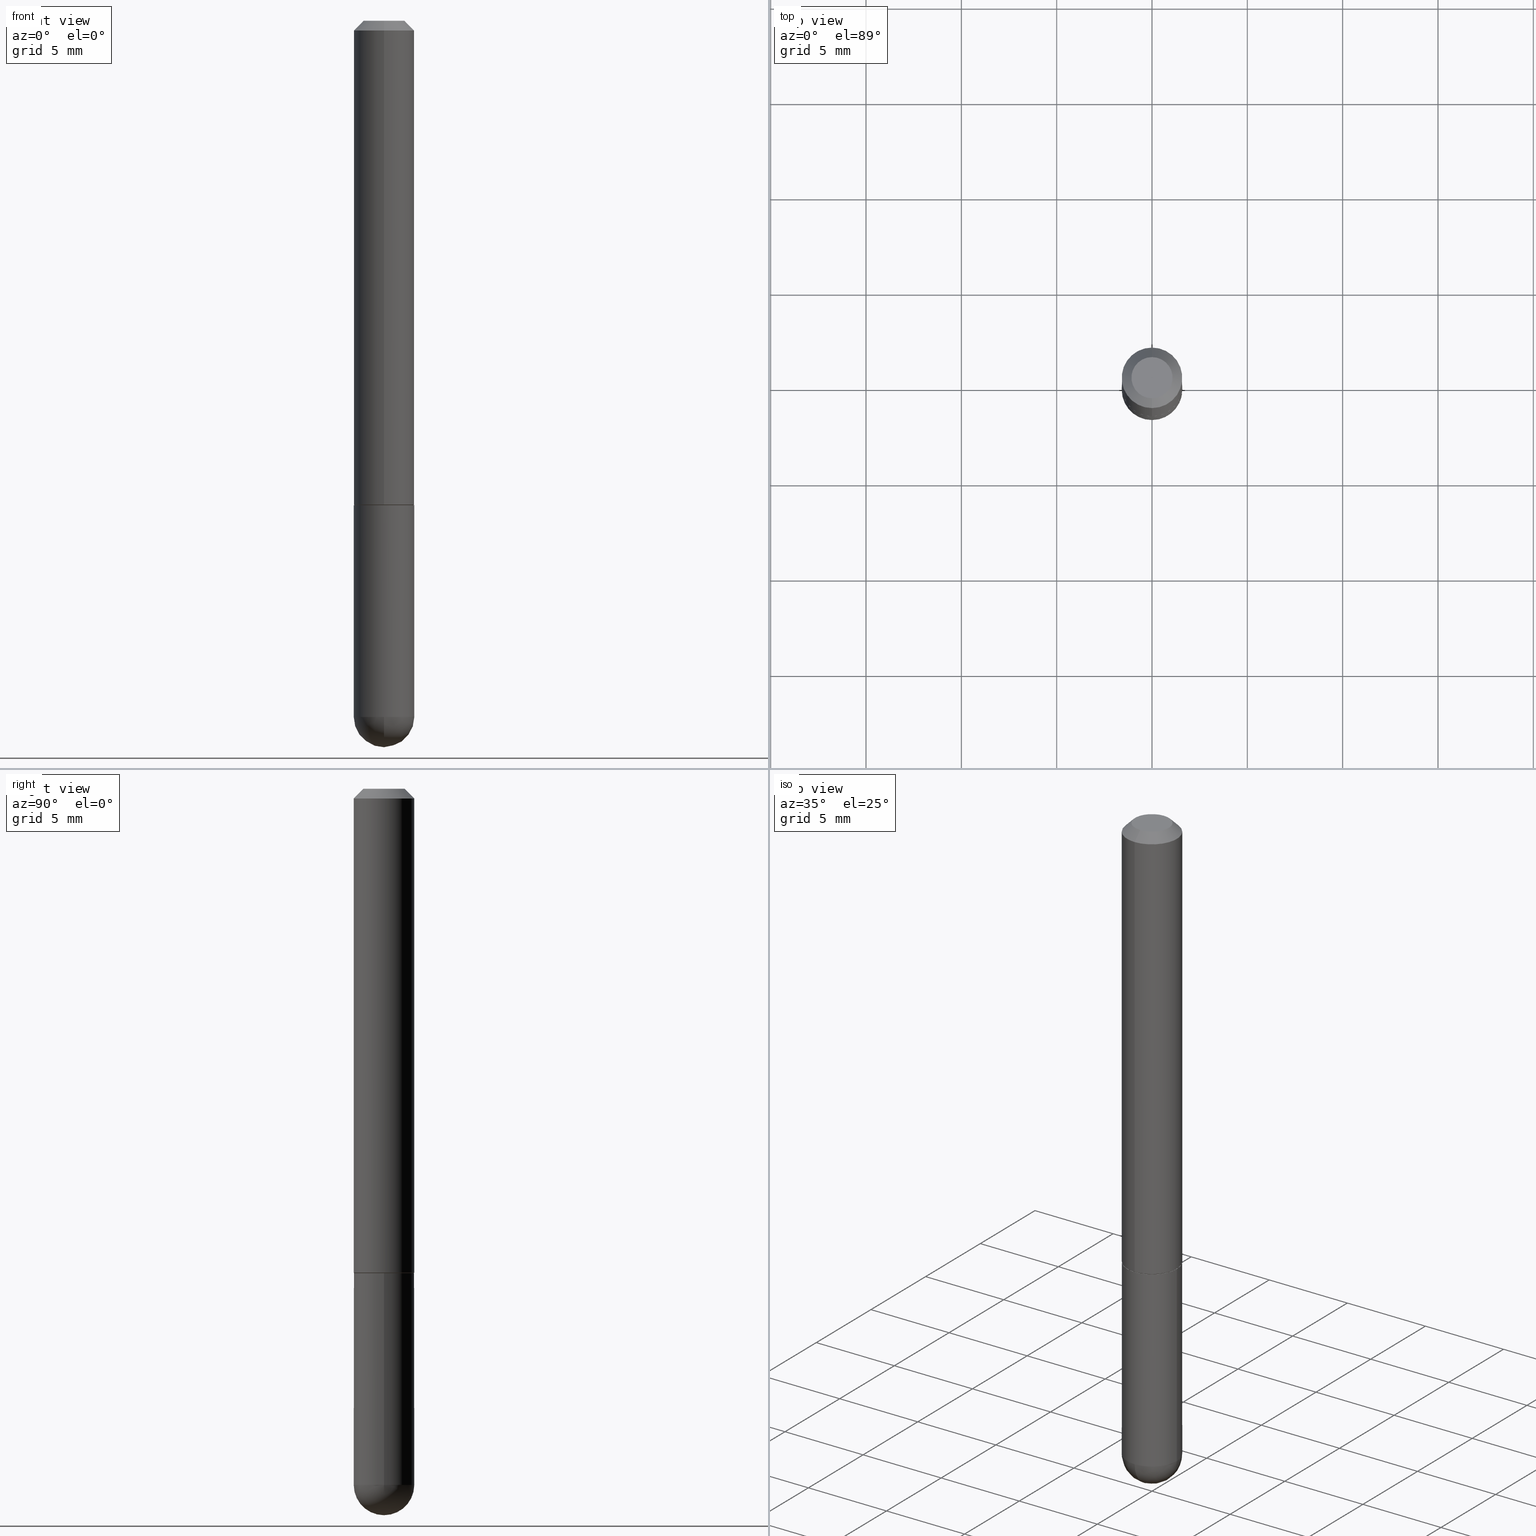
[diagram: canonical four-view strip — front | top / right | iso, engineering-drawing reading convention]
A machine part, canonical four-view strip (front | top / right | iso — engineering-drawing reading convention). The complete STEP part file that produces these views, byte-faithful:
ISO-10303-21;
HEADER;
FILE_DESCRIPTION (( 'STEP AP203' ),
    '1' );
FILE_NAME ('91273.STEP',
    '2024-04-10T12:35:40',
    ( '' ),
    ( '' ),
    'SwSTEP 2.0',
    'SolidWorks 2023',
    '' );
FILE_SCHEMA (( 'CONFIG_CONTROL_DESIGN' ));
ENDSEC;

DATA;
#1 = EDGE_CURVE ( 'NONE', #384, #281, #323, .T. ) ;
#2 = PERSON_AND_ORGANIZATION ( #147, #135 ) ;
#3 = ORIENTED_EDGE ( 'NONE', *, *, #132, .F. ) ;
#4 = CIRCLE ( 'NONE', #287, 0.06250000000000001388 ) ;
#5 = PERSON_AND_ORGANIZATION_ROLE ( 'creator' ) ;
#6 = ADVANCED_FACE ( 'NONE', ( #192 ), #360, .T. ) ;
#7 = EDGE_LOOP ( 'NONE', ( #105, #208, #3, #102 ) ) ;
#8 = DIRECTION ( 'NONE',  ( -2.460225097769995611E-29, 3.470349489417668175E-15, 1.000000000000000000 ) ) ;
#9 = CC_DESIGN_PERSON_AND_ORGANIZATION_ASSIGNMENT ( #272, #328, ( #352 ) ) ;
#10 = ORIENTED_EDGE ( 'NONE', *, *, #183, .F. ) ;
#11 = CIRCLE ( 'NONE', #351, 0.06250000000000001388 ) ;
#12 = AXIS2_PLACEMENT_3D ( 'NONE', #368, #58, #218 ) ;
#13 = DIRECTION ( 'NONE',  ( -1.000000000000000000, 6.982962677686265922E-15, -4.883557194083112901E-29 ) ) ;
#14 = ORIENTED_EDGE ( 'NONE', *, *, #75, .F. ) ;
#15 = EDGE_CURVE ( 'NONE', #305, #384, #292, .T. ) ;
#16 = SPHERICAL_SURFACE ( 'NONE', #41, 0.06250000000000031919 ) ;
#17 = EDGE_LOOP ( 'NONE', ( #271, #160, #258, #317, #130 ) ) ;
#18 = PRODUCT_RELATED_PRODUCT_CATEGORY ( 'detail', '', ( #85 ) ) ;
#19 = DIRECTION ( 'NONE',  ( 0.000000000000000000, 0.000000000000000000, 1.000000000000000000 ) ) ;
#20 = APPLICATION_CONTEXT ( 'configuration controlled 3d designs of mechanical parts and assemblies' ) ;
#21 = CC_DESIGN_APPROVAL ( #239, ( #336 ) ) ;
#22 = DESIGN_CONTEXT ( 'detailed design', #20, 'design' ) ;
#23 = DIRECTION ( 'NONE',  ( 2.460225097769995891E-29, -3.470349489417668570E-15, -1.000000000000000000 ) ) ;
#24 = EDGE_CURVE ( 'NONE', #118, #180, #106, .T. ) ;
#25 = ORIENTED_EDGE ( 'NONE', *, *, #263, .F. ) ;
#26 = CIRCLE ( 'NONE', #277, 0.04249999999999975325 ) ;
#27 = EDGE_CURVE ( 'NONE', #44, #29, #307, .T. ) ;
#28 = DIRECTION ( 'NONE',  ( 2.460225097769995891E-29, -3.470349489417668570E-15, -1.000000000000000000 ) ) ;
#29 = VERTEX_POINT ( 'NONE', #197 ) ;
#30 = DIRECTION ( 'NONE',  ( -6.982962677686265922E-15, -1.000000000000000000, 3.470349489417668570E-15 ) ) ;
#31 = ORIENTED_EDGE ( 'NONE', *, *, #27, .F. ) ;
#32 = CARTESIAN_POINT ( 'NONE',  ( 0.06250000000000001388, -3.927916506198536858E-15, -0.9999999999999996669 ) ) ;
#33 = CIRCLE ( 'NONE', #346, 0.06250000000000031919 ) ;
#34 = CYLINDRICAL_SURFACE ( 'NONE', #223, 0.06250000000000004163 ) ;
#35 = CIRCLE ( 'NONE', #69, 0.06250000000000001388 ) ;
#36 = MECHANICAL_CONTEXT ( 'NONE', #349, 'mechanical' ) ;
#37 = DIRECTION ( 'NONE',  ( -2.460225097769995891E-29, 3.470349489417668570E-15, 1.000000000000000000 ) ) ;
#38 = DIRECTION ( 'NONE',  ( 1.000000000000000000, -6.982962677686267499E-15, 4.876176775795936353E-29 ) ) ;
#39 = MANIFOLD_SOLID_BREP ( 'Body-Move/Copy2[2]', #212 ) ;
#40 = AXIS2_PLACEMENT_3D ( 'NONE', #295, #330, #266 ) ;
#41 = AXIS2_PLACEMENT_3D ( 'NONE', #262, #13, #66 ) ;
#42 = VERTEX_POINT ( 'NONE', #327 ) ;
#43 = CARTESIAN_POINT ( 'NONE',  ( 3.339755826017505008E-29, -5.707577355157432999E-15, -1.499999999999999778 ) ) ;
#44 = VERTEX_POINT ( 'NONE', #43 ) ;
#45 = CALENDAR_DATE ( 2024, 10, 4 ) ;
#46 = AXIS2_PLACEMENT_3D ( 'NONE', #242, #369, #290 ) ;
#47 = DIRECTION ( 'NONE',  ( -6.982962677686265922E-15, -1.000000000000000000, 3.470349489417668175E-15 ) ) ;
#48 = EDGE_CURVE ( 'NONE', #276, #148, #222, .T. ) ;
#49 = CARTESIAN_POINT ( 'NONE',  ( 2.445468806185136036E-29, -3.491481338843144399E-15, -0.9999999999999996669 ) ) ;
#50 = AXIS2_PLACEMENT_3D ( 'NONE', #184, #28, #286 ) ;
#51 = PERSON_AND_ORGANIZATION ( #147, #135 ) ;
#52 = FACE_OUTER_BOUND ( 'NONE', #391, .T. ) ;
#53 = ADVANCED_BREP_SHAPE_REPRESENTATION ( '91273', ( #169, #39, #123 ), #401 ) ;
#54 = APPLICATION_PROTOCOL_DEFINITION ( 'international standard', 'config_control_design', 1994, #20 ) ;
#55 = APPROVAL_ROLE ( '' ) ;
#56 = ORIENTED_EDGE ( 'NONE', *, *, #15, .F. ) ;
#57 = AXIS2_PLACEMENT_3D ( 'NONE', #211, #303, #371 ) ;
#58 = DIRECTION ( 'NONE',  ( -2.460225097769995891E-29, 3.470349489417668570E-15, 1.000000000000000000 ) ) ;
#59 = EDGE_CURVE ( 'NONE', #42, #389, #235, .T. ) ;
#60 = AXIS2_PLACEMENT_3D ( 'NONE', #300, #409, #249 ) ;
#61 = PLANE ( 'NONE',  #348 ) ;
#62 = VECTOR ( 'NONE', #311, 39.37007874015748143 ) ;
#63 = ADVANCED_FACE ( 'NONE', ( #395 ), #363, .T. ) ;
#64 = DATE_AND_TIME ( #203, #86 ) ;
#65 = CARTESIAN_POINT ( 'NONE',  ( 0.000000000000000000, 0.000000000000000000, 0.000000000000000000 ) ) ;
#66 = DIRECTION ( 'NONE',  ( 6.982962677686265922E-15, 1.000000000000000000, -4.370956789862798273E-15 ) ) ;
#67 = AXIS2_PLACEMENT_3D ( 'NONE', #329, #361, #124 ) ;
#68 = COORDINATED_UNIVERSAL_TIME_OFFSET ( 5, 0, .BEHIND. ) ;
#69 = AXIS2_PLACEMENT_3D ( 'NONE', #83, #177, #149 ) ;
#70 = FACE_OUTER_BOUND ( 'NONE', #244, .T. ) ;
#71 = ORIENTED_EDGE ( 'NONE', *, *, #291, .T. ) ;
#72 = ORIENTED_EDGE ( 'NONE', *, *, #366, .F. ) ;
#73 = CARTESIAN_POINT ( 'NONE',  ( -0.06249999999999997918, 4.440892098500624683E-16, -3.074334431409315413E-30 ) ) ;
#74 = SECURITY_CLASSIFICATION_LEVEL ( 'unclassified' ) ;
#75 = EDGE_CURVE ( 'NONE', #305, #394, #136, .T. ) ;
#76 = CYLINDRICAL_SURFACE ( 'NONE', #240, 0.06250000000000004163 ) ;
#77 = CARTESIAN_POINT ( 'NONE',  ( 0.000000000000000000, 0.000000000000000000, 0.000000000000000000 ) ) ;
#78 = ORIENTED_EDGE ( 'NONE', *, *, #1, .F. ) ;
#79 = APPROVAL_DATE_TIME ( #333, #239 ) ;
#80 = LOCAL_TIME ( 8, 35, 40.00000000000000000, #412 ) ;
#81 = EDGE_CURVE ( 'NONE', #180, #394, #355, .T. ) ;
#82 = ORIENTED_EDGE ( 'NONE', *, *, #190, .T. ) ;
#83 = CARTESIAN_POINT ( 'NONE',  ( 4.920450195540008493E-31, -6.940698978835360115E-17, -0.02000000000000006981 ) ) ;
#84 = EDGE_CURVE ( 'NONE', #44, #276, #33, .T. ) ;
#85 = PRODUCT ( '91273', '91273', '', ( #36 ) ) ;
#86 = LOCAL_TIME ( 8, 35, 40.00000000000000000, #410 ) ;
#87 = LINE ( 'NONE', #215, #62 ) ;
#88 = DIRECTION ( 'NONE',  ( -1.000000000000000000, 6.982962677686265922E-15, -4.883557194083112901E-29 ) ) ;
#89 = ADVANCED_FACE ( 'NONE', ( #70 ), #199, .F. ) ;
#90 = CARTESIAN_POINT ( 'NONE',  ( -4.294522046776807074E-16, -0.06150000000000346856, -0.9999999999999994449 ) ) ;
#91 = DIRECTION ( 'NONE',  ( -2.460225097769995891E-29, 3.470349489417668570E-15, 1.000000000000000000 ) ) ;
#92 = FACE_OUTER_BOUND ( 'NONE', #95, .T. ) ;
#93 = CC_DESIGN_PERSON_AND_ORGANIZATION_ASSIGNMENT ( #398, #5, ( #336 ) ) ;
#94 = CARTESIAN_POINT ( 'NONE',  ( 2.445468806185136036E-29, -3.491481338843144399E-15, -0.9999999999999996669 ) ) ;
#95 = EDGE_LOOP ( 'NONE', ( #204, #315, #257, #298 ) ) ;
#96 = CIRCLE ( 'NONE', #178, 0.06249999999999995143 ) ;
#97 = CALENDAR_DATE ( 2024, 10, 4 ) ;
#98 = DIRECTION ( 'NONE',  ( -2.445468806185136597E-29, 3.491481338843145583E-15, 1.000000000000000000 ) ) ;
#99 = FACE_OUTER_BOUND ( 'NONE', #231, .T. ) ;
#100 = EDGE_CURVE ( 'NONE', #148, #29, #365, .T. ) ;
#101 = VECTOR ( 'NONE', #112, 39.37007874015748143 ) ;
#102 = ORIENTED_EDGE ( 'NONE', *, *, #24, .F. ) ;
#103 = CIRCLE ( 'NONE', #57, 0.06149999999999999911 ) ;
#104 = ADVANCED_FACE ( 'NONE', ( #309 ), #246, .T. ) ;
#105 = ORIENTED_EDGE ( 'NONE', *, *, #289, .T. ) ;
#106 = LINE ( 'NONE', #108, #152 ) ;
#107 = DIRECTION ( 'NONE',  ( 1.000000000000000000, 0.000000000000000000, 0.000000000000000000 ) ) ;
#108 = CARTESIAN_POINT ( 'NONE',  ( -4.294522046776807074E-16, -0.06150000000000346856, -0.9999999999999994449 ) ) ;
#109 = COORDINATED_UNIVERSAL_TIME_OFFSET ( 5, 0, .BEHIND. ) ;
#110 = CARTESIAN_POINT ( 'NONE',  ( 4.364351673553922118E-16, 0.06249999999999995143, -0.02000000000000028491 ) ) ;
#111 = AXIS2_PLACEMENT_3D ( 'NONE', #122, #150, #245 ) ;
#112 = DIRECTION ( 'NONE',  ( -2.460225097769996171E-29, 3.470349489417668175E-15, 1.000000000000000000 ) ) ;
#113 = FACE_OUTER_BOUND ( 'NONE', #227, .T. ) ;
#114 = VERTEX_POINT ( 'NONE', #146 ) ;
#115 = DIRECTION ( 'NONE',  ( 1.000000000000000000, -6.982962677686265922E-15, 4.883557194083112340E-29 ) ) ;
#116 = CARTESIAN_POINT ( 'NONE',  ( 0.06249999999999997918, -4.364351673553915708E-16, 3.047610484872459170E-30 ) ) ;
#117 = CARTESIAN_POINT ( 'NONE',  ( 4.440892098500628134E-16, 0.06250000000000004163, -2.168968430886044335E-16 ) ) ;
#118 = VERTEX_POINT ( 'NONE', #90 ) ;
#119 = SHAPE_DEFINITION_REPRESENTATION ( #139, #53 ) ;
#120 = ORIENTED_EDGE ( 'NONE', *, *, #15, .T. ) ;
#121 = CIRCLE ( 'NONE', #111, 0.06250000000000006939 ) ;
#122 = CARTESIAN_POINT ( 'NONE',  ( 2.457764872672225560E-29, -3.466879139928250536E-15, -0.9989999999999998881 ) ) ;
#123 = AXIS2_PLACEMENT_3D ( 'NONE', #138, #19, #107 ) ;
#124 = DIRECTION ( 'NONE',  ( -1.000000000000000000, 6.982962677686265922E-15, -4.876176775795935793E-29 ) ) ;
#125 = EDGE_CURVE ( 'NONE', #200, #389, #11, .T. ) ;
#126 = DIRECTION ( 'NONE',  ( -2.460225097769995891E-29, 3.470349489417668570E-15, 1.000000000000000000 ) ) ;
#127 = DIRECTION ( 'NONE',  ( 2.460225097769995611E-29, -3.470349489417668175E-15, -1.000000000000000000 ) ) ;
#128 =( NAMED_UNIT ( * ) PLANE_ANGLE_UNIT ( ) SI_UNIT ( $, .RADIAN. ) );
#129 = CARTESIAN_POINT ( 'NONE',  ( 3.515361408891131616E-29, -5.019004424587019187E-15, -1.437499999999999112 ) ) ;
#130 = ORIENTED_EDGE ( 'NONE', *, *, #100, .T. ) ;
#131 = DIMENSIONAL_EXPONENTS ( 1.000000000000000000, 0.000000000000000000, 0.000000000000000000, 0.000000000000000000, 0.000000000000000000, 0.000000000000000000, 0.000000000000000000 ) ;
#132 = EDGE_CURVE ( 'NONE', #180, #114, #170, .T. ) ;
#133 = PERSON_AND_ORGANIZATION_ROLE ( 'design_owner' ) ;
#134 = ORIENTED_EDGE ( 'NONE', *, *, #183, .T. ) ;
#135 = ORGANIZATION ( 'UNSPECIFIED', 'UNSPECIFIED', '' ) ;
#136 = LINE ( 'NONE', #261, #379 ) ;
#137 = CALENDAR_DATE ( 2024, 10, 4 ) ;
#138 = CARTESIAN_POINT ( 'NONE',  ( 0.000000000000000000, 0.000000000000000000, 0.000000000000000000 ) ) ;
#139 = PRODUCT_DEFINITION_SHAPE ( 'NONE', 'NONE',  #144 ) ;
#140 = AXIS2_PLACEMENT_3D ( 'NONE', #172, #337, #181 ) ;
#141 = DIRECTION ( 'NONE',  ( -2.445468806185136877E-29, 3.491481338843145188E-15, 1.000000000000000000 ) ) ;
#142 = CC_DESIGN_APPROVAL ( #187, ( #144 ) ) ;
#143 = ORIENTED_EDGE ( 'NONE', *, *, #27, .T. ) ;
#144 = PRODUCT_DEFINITION ( 'UNKNOWN', '', #336, #22 ) ;
#145 = ORIENTED_EDGE ( 'NONE', *, *, #1, .T. ) ;
#146 = CARTESIAN_POINT ( 'NONE',  ( 4.440892098500754352E-16, 0.06249999999999659994, -0.9990000000000002212 ) ) ;
#147 = PERSON ( 'UNSPECIFIED', 'UNSPECIFIED', 'UNSPECIFIED', ('UNSPECIFIED'), ('UNSPECIFIED'), ('UNSPECIFIED') ) ;
#148 = VERTEX_POINT ( 'NONE', #344 ) ;
#149 = DIRECTION ( 'NONE',  ( -6.982962677686265922E-15, -1.000000000000000000, 3.483106191921934765E-15 ) ) ;
#150 = DIRECTION ( 'NONE',  ( -2.460225097769995891E-29, 3.470349489417668570E-15, 1.000000000000000000 ) ) ;
#151 = VERTEX_POINT ( 'NONE', #153 ) ;
#152 = VECTOR ( 'NONE', #228, 39.37007874015748143 ) ;
#153 = CARTESIAN_POINT ( 'NONE',  ( 4.405364961712868626E-16, 0.06149999999999652273, -1.000000000000000000 ) ) ;
#154 = ORIENTED_EDGE ( 'NONE', *, *, #342, .F. ) ;
#155 = PERSON_AND_ORGANIZATION_ROLE ( 'creator' ) ;
#156 = ADVANCED_FACE ( 'NONE', ( #377 ), #268, .T. ) ;
#157 = ORIENTED_EDGE ( 'NONE', *, *, #219, .T. ) ;
#158 = LENGTH_MEASURE_WITH_UNIT ( LENGTH_MEASURE( 0.02539999999999999897 ), #354 );
#159 = AXIS2_PLACEMENT_3D ( 'NONE', #166, #8, #270 ) ;
#160 = ORIENTED_EDGE ( 'NONE', *, *, #59, .T. ) ;
#161 = EDGE_CURVE ( 'NONE', #114, #281, #396, .T. ) ;
#162 = EDGE_CURVE ( 'NONE', #384, #305, #26, .T. ) ;
#163 = DIRECTION ( 'NONE',  ( -6.982962677686265922E-15, -1.000000000000000000, 4.442029257990672131E-15 ) ) ;
#164 = DIRECTION ( 'NONE',  ( -6.982962677686265922E-15, -1.000000000000000000, 3.470349489417668175E-15 ) ) ;
#165 = APPROVAL_ROLE ( '' ) ;
#166 = CARTESIAN_POINT ( 'NONE',  ( 2.460225097769995331E-29, -3.470349489417667386E-15, -0.9999999999999996669 ) ) ;
#167 = CARTESIAN_POINT ( 'NONE',  ( 3.666055405785284205E-16, 0.04249999999999975325, 9.491725503489062597E-17 ) ) ;
#168 = CARTESIAN_POINT ( 'NONE',  ( 2.460225097769995331E-29, -3.470349489417667386E-15, -0.9999999999999996669 ) ) ;
#169 = MANIFOLD_SOLID_BREP ( 'Body-Move/Copy2[1]', #313 ) ;
#170 = CIRCLE ( 'NONE', #12, 0.06250000000000006939 ) ;
#171 = CARTESIAN_POINT ( 'NONE',  ( 4.364351673553922118E-16, 0.06249999999999995143, -0.02000000000000028491 ) ) ;
#172 = CARTESIAN_POINT ( 'NONE',  ( 3.515361408891131616E-29, -5.019004424587019187E-15, -1.437499999999999112 ) ) ;
#173 = DIRECTION ( 'NONE',  ( -2.460225097769995891E-29, 3.470349489417668570E-15, 1.000000000000000000 ) ) ;
#174 = CARTESIAN_POINT ( 'NONE',  ( -4.364351673553675105E-16, -0.06250000000000353884, -0.9989999999999996660 ) ) ;
#175 = PERSON_AND_ORGANIZATION ( #147, #135 ) ;
#176 = APPROVAL ( #392, 'UNSPECIFIED' ) ;
#177 = DIRECTION ( 'NONE',  ( -2.460225097769995891E-29, 3.470349489417668570E-15, 1.000000000000000000 ) ) ;
#178 = AXIS2_PLACEMENT_3D ( 'NONE', #129, #98, #341 ) ;
#179 = CARTESIAN_POINT ( 'NONE',  ( -3.601761448830043066E-16, -0.04249999999999975325, 3.898969616353907376E-16 ) ) ;
#180 = VERTEX_POINT ( 'NONE', #174 ) ;
#181 = DIRECTION ( 'NONE',  ( 1.000000000000000000, -6.982962677686268288E-15, 0.000000000000000000 ) ) ;
#182 = FACE_OUTER_BOUND ( 'NONE', #347, .T. ) ;
#183 = EDGE_CURVE ( 'NONE', #151, #118, #103, .T. ) ;
#184 = CARTESIAN_POINT ( 'NONE',  ( 4.920450195540008493E-31, -6.940698978835360115E-17, -0.02000000000000006981 ) ) ;
#185 = LOCAL_TIME ( 8, 35, 40.00000000000000000, #109 ) ;
#186 = CARTESIAN_POINT ( 'NONE',  ( 4.920450195540008493E-31, -6.940698978835360115E-17, -0.02000000000000006981 ) ) ;
#187 = APPROVAL ( #374, 'UNSPECIFIED' ) ;
#188 = AXIS2_PLACEMENT_3D ( 'NONE', #320, #37, #164 ) ;
#189 = APPROVAL_PERSON_ORGANIZATION ( #253, #239, #285 ) ;
#190 = EDGE_CURVE ( 'NONE', #281, #394, #35, .T. ) ;
#191 = APPLICATION_PROTOCOL_DEFINITION ( 'international standard', 'config_control_design', 1994, #349 ) ;
#192 = FACE_OUTER_BOUND ( 'NONE', #260, .T. ) ;
#193 = ADVANCED_FACE ( 'NONE', ( #279 ), #61, .F. ) ;
#194 = CARTESIAN_POINT ( 'NONE',  ( -4.364351673553919159E-16, -0.06250000000000004163, 2.168968430886044335E-16 ) ) ;
#195 = CC_DESIGN_APPROVAL ( #176, ( #352 ) ) ;
#196 = APPROVAL_DATE_TIME ( #64, #187 ) ;
#197 = CARTESIAN_POINT ( 'NONE',  ( 4.364351673554260835E-16, 0.06249999999999487910, -1.437499999999999334 ) ) ;
#198 = DATE_AND_TIME ( #304, #185 ) ;
#199 = PLANE ( 'NONE',  #67 ) ;
#200 = VERTEX_POINT ( 'NONE', #32 ) ;
#201 = DIRECTION ( 'NONE',  ( -2.445468806185136597E-29, 3.491481338843145583E-15, 1.000000000000000000 ) ) ;
#202 = PERSON_AND_ORGANIZATION_ROLE ( 'design_supplier' ) ;
#203 = CALENDAR_DATE ( 2024, 10, 4 ) ;
#204 = ORIENTED_EDGE ( 'NONE', *, *, #161, .F. ) ;
#205 = APPROVAL_DATE_TIME ( #198, #176 ) ;
#206 = CARTESIAN_POINT ( 'NONE',  ( -4.287811248607203282E-16, -0.06250000000000008327, -0.01999999999999985123 ) ) ;
#207 = ADVANCED_FACE ( 'NONE', ( #99 ), #34, .T. ) ;
#208 = ORIENTED_EDGE ( 'NONE', *, *, #342, .T. ) ;
#209 = DIRECTION ( 'NONE',  ( -2.460225097769995891E-29, 3.470349489417668570E-15, 1.000000000000000000 ) ) ;
#210 = APPROVAL_PERSON_ORGANIZATION ( #51, #187, #55 ) ;
#211 = CARTESIAN_POINT ( 'NONE',  ( 2.460225097769995331E-29, -3.470349489417667386E-15, -0.9999999999999996669 ) ) ;
#212 = CLOSED_SHELL ( 'NONE', ( #104, #207, #280, #156, #217, #224, #378, #193 ) ) ;
#213 = CIRCLE ( 'NONE', #247, 0.06250000000000001388 ) ;
#214 = DIRECTION ( 'NONE',  ( -6.982962677686265922E-15, -1.000000000000000000, 4.442029257990672131E-15 ) ) ;
#215 = CARTESIAN_POINT ( 'NONE',  ( 4.369837824924861613E-16, 0.06149999999999652273, -1.000000000000000000 ) ) ;
#216 = DIRECTION ( 'NONE',  ( 6.982962677686265922E-15, 1.000000000000000000, -4.370956789862798273E-15 ) ) ;
#217 = ADVANCED_FACE ( 'NONE', ( #92 ), #76, .T. ) ;
#218 = DIRECTION ( 'NONE',  ( -6.982962677686265922E-15, -1.000000000000000000, 4.370956789862816416E-15 ) ) ;
#219 = EDGE_CURVE ( 'NONE', #389, #200, #4, .T. ) ;
#220 = DATE_TIME_ROLE ( 'creation_date' ) ;
#221 = ORIENTED_EDGE ( 'NONE', *, *, #132, .T. ) ;
#222 = CIRCLE ( 'NONE', #40, 0.06249999999999995143 ) ;
#223 = AXIS2_PLACEMENT_3D ( 'NONE', #288, #126, #30 ) ;
#224 = ADVANCED_FACE ( 'NONE', ( #302 ), #407, .T. ) ;
#225 = AXIS2_PLACEMENT_3D ( 'NONE', #77, #393, #321 ) ;
#226 = CIRCLE ( 'NONE', #293, 0.06149999999999999911 ) ;
#227 = EDGE_LOOP ( 'NONE', ( #31, #338, #25, #72 ) ) ;
#228 = DIRECTION ( 'NONE',  ( -4.937700262165222518E-15, -0.7071067811866417196, 0.7071067811864533148 ) ) ;
#229 = DATE_TIME_ROLE ( 'classification_date' ) ;
#230 = DIRECTION ( 'NONE',  ( -4.851104656540957964E-15, -0.7071067811865491270, -0.7071067811865459074 ) ) ;
#231 = EDGE_LOOP ( 'NONE', ( #221, #376, #267, #332 ) ) ;
#232 = CARTESIAN_POINT ( 'NONE',  ( 3.184241630977247050E-29, -5.493186792727071060E-15, -1.437499999999999556 ) ) ;
#233 = ORIENTED_EDGE ( 'NONE', *, *, #59, .F. ) ;
#234 = VECTOR ( 'NONE', #238, 39.37007874015748143 ) ;
#235 = LINE ( 'NONE', #73, #359 ) ;
#236 = DIRECTION ( 'NONE',  ( -7.105427357601001859E-15, -1.000000000000000000, 0.000000000000000000 ) ) ;
#237 = DIRECTION ( 'NONE',  ( -2.445468806185136877E-29, 3.491481338843145188E-15, 1.000000000000000000 ) ) ;
#238 = DIRECTION ( 'NONE',  ( -2.460225097769996171E-29, 3.470349489417668175E-15, 1.000000000000000000 ) ) ;
#239 = APPROVAL ( #310, 'UNSPECIFIED' ) ;
#240 = AXIS2_PLACEMENT_3D ( 'NONE', #65, #243, #403 ) ;
#241 = DIRECTION ( 'NONE',  ( 1.000000000000000000, -6.982962677686269077E-15, 0.000000000000000000 ) ) ;
#242 = CARTESIAN_POINT ( 'NONE',  ( 3.515361408891131616E-29, -5.019004424587019187E-15, -1.437499999999999112 ) ) ;
#243 = DIRECTION ( 'NONE',  ( -2.460225097769995891E-29, 3.470349489417668570E-15, 1.000000000000000000 ) ) ;
#244 = EDGE_LOOP ( 'NONE', ( #370, #157 ) ) ;
#245 = DIRECTION ( 'NONE',  ( -6.982962677686265922E-15, -1.000000000000000000, 4.370956789862816416E-15 ) ) ;
#246 = CONICAL_SURFACE ( 'NONE', #60, 0.06149999999999999911, 0.7853981633975849475 ) ;
#247 = AXIS2_PLACEMENT_3D ( 'NONE', #334, #173, #301 ) ;
#248 = ORIENTED_EDGE ( 'NONE', *, *, #48, .F. ) ;
#249 = DIRECTION ( 'NONE',  ( -6.982962677686265922E-15, -1.000000000000000000, 4.442029257990672131E-15 ) ) ;
#250 = ORIENTED_EDGE ( 'NONE', *, *, #84, .F. ) ;
#251 = CC_DESIGN_PERSON_AND_ORGANIZATION_ASSIGNMENT ( #390, #202, ( #336 ) ) ;
#252 = EDGE_LOOP ( 'NONE', ( #154, #134, #408, #273 ) ) ;
#253 = PERSON_AND_ORGANIZATION ( #147, #135 ) ;
#254 = PERSON_AND_ORGANIZATION ( #147, #135 ) ;
#255 = CONICAL_SURFACE ( 'NONE', #50, 0.06250000000000001388, 0.7853981633974471688 ) ;
#256 = CARTESIAN_POINT ( 'NONE',  ( 2.967759138016645800E-16, 0.04249999999999975325, -2.628629913267970877E-17 ) ) ;
#257 = ORIENTED_EDGE ( 'NONE', *, *, #81, .T. ) ;
#258 = ORIENTED_EDGE ( 'NONE', *, *, #125, .F. ) ;
#259 = APPROVAL_PERSON_ORGANIZATION ( #175, #176, #165 ) ;
#260 = EDGE_LOOP ( 'NONE', ( #233, #397, #381, #71, #350 ) ) ;
#261 = CARTESIAN_POINT ( 'NONE',  ( -4.287811248607203282E-16, -0.06250000000000008327, -0.01999999999999985123 ) ) ;
#262 = CARTESIAN_POINT ( 'NONE',  ( 3.184241630977247050E-29, -5.493186792727071060E-15, -1.437499999999999556 ) ) ;
#263 = EDGE_CURVE ( 'NONE', #42, #276, #96, .T. ) ;
#264 = DATE_AND_TIME ( #45, #385 ) ;
#265 = CC_DESIGN_PERSON_AND_ORGANIZATION_ASSIGNMENT ( #2, #133, ( #85 ) ) ;
#266 = DIRECTION ( 'NONE',  ( 1.000000000000000000, -6.982962677686268288E-15, 0.000000000000000000 ) ) ;
#267 = ORIENTED_EDGE ( 'NONE', *, *, #405, .F. ) ;
#268 = CONICAL_SURFACE ( 'NONE', #283, 0.06250000000000001388, 0.7853981633974471688 ) ;
#269 = DIRECTION ( 'NONE',  ( -2.460225097769995891E-29, 3.470349489417668570E-15, 1.000000000000000000 ) ) ;
#270 = DIRECTION ( 'NONE',  ( -6.982962677686265922E-15, -1.000000000000000000, 3.470349489417668175E-15 ) ) ;
#271 = ORIENTED_EDGE ( 'NONE', *, *, #366, .T. ) ;
#272 = PERSON_AND_ORGANIZATION ( #147, #135 ) ;
#273 = ORIENTED_EDGE ( 'NONE', *, *, #306, .F. ) ;
#274 = DIRECTION ( 'NONE',  ( -2.445468806185136597E-29, 3.491481338843145583E-15, 1.000000000000000000 ) ) ;
#275 = ADVANCED_FACE ( 'NONE', ( #52 ), #345, .T. ) ;
#276 = VERTEX_POINT ( 'NONE', #406 ) ;
#277 = AXIS2_PLACEMENT_3D ( 'NONE', #402, #209, #47 ) ;
#278 = FACE_OUTER_BOUND ( 'NONE', #308, .T. ) ;
#279 = FACE_OUTER_BOUND ( 'NONE', #387, .T. ) ;
#280 = ADVANCED_FACE ( 'NONE', ( #182 ), #255, .T. ) ;
#281 = VERTEX_POINT ( 'NONE', #171 ) ;
#282 = ADVANCED_FACE ( 'NONE', ( #113 ), #16, .T. ) ;
#283 = AXIS2_PLACEMENT_3D ( 'NONE', #186, #23, #404 ) ;
#284 = DATE_AND_TIME ( #97, #80 ) ;
#285 = APPROVAL_ROLE ( '' ) ;
#286 = DIRECTION ( 'NONE',  ( 6.982962677686265922E-15, 1.000000000000000000, -3.483106191921934765E-15 ) ) ;
#287 = AXIS2_PLACEMENT_3D ( 'NONE', #49, #362, #296 ) ;
#288 = CARTESIAN_POINT ( 'NONE',  ( 0.000000000000000000, 0.000000000000000000, 0.000000000000000000 ) ) ;
#289 = EDGE_CURVE ( 'NONE', #118, #151, #226, .T. ) ;
#290 = DIRECTION ( 'NONE',  ( 1.000000000000000000, -6.982962677686268288E-15, 0.000000000000000000 ) ) ;
#291 = EDGE_CURVE ( 'NONE', #148, #200, #331, .T. ) ;
#292 = CIRCLE ( 'NONE', #188, 0.04249999999999975325 ) ;
#293 = AXIS2_PLACEMENT_3D ( 'NONE', #322, #269, #163 ) ;
#294 = DIRECTION ( 'NONE',  ( 6.982962677686265922E-15, 1.000000000000000000, 0.000000000000000000 ) ) ;
#295 = CARTESIAN_POINT ( 'NONE',  ( 3.515361408891131616E-29, -5.019004424587019187E-15, -1.437499999999999112 ) ) ;
#296 = DIRECTION ( 'NONE',  ( 1.000000000000000000, -6.982962677686269077E-15, 0.000000000000000000 ) ) ;
#297 = VECTOR ( 'NONE', #388, 39.37007874015748143 ) ;
#298 = ORIENTED_EDGE ( 'NONE', *, *, #190, .F. ) ;
#299 = ORIENTED_EDGE ( 'NONE', *, *, #75, .T. ) ;
#300 = CARTESIAN_POINT ( 'NONE',  ( 2.460225097769995331E-29, -3.470349489417667386E-15, -0.9999999999999996669 ) ) ;
#301 = DIRECTION ( 'NONE',  ( -6.982962677686265922E-15, -1.000000000000000000, 3.483106191921934765E-15 ) ) ;
#302 = FACE_OUTER_BOUND ( 'NONE', #252, .T. ) ;
#303 = DIRECTION ( 'NONE',  ( -2.460225097769995891E-29, 3.470349489417668570E-15, 1.000000000000000000 ) ) ;
#304 = CALENDAR_DATE ( 2024, 10, 4 ) ;
#305 = VERTEX_POINT ( 'NONE', #179 ) ;
#306 = EDGE_CURVE ( 'NONE', #114, #180, #121, .T. ) ;
#307 = CIRCLE ( 'NONE', #373, 0.06250000000000031919 ) ;
#308 = EDGE_LOOP ( 'NONE', ( #343, #10 ) ) ;
#309 = FACE_OUTER_BOUND ( 'NONE', #7, .T. ) ;
#310 = APPROVAL_STATUS ( 'not_yet_approved' ) ;
#311 = DIRECTION ( 'NONE',  ( 5.024295867788748699E-15, 0.7071067811866466046, 0.7071067811864484298 ) ) ;
#312 = PLANE ( 'NONE',  #159 ) ;
#313 = CLOSED_SHELL ( 'NONE', ( #63, #282, #275, #89, #6 ) ) ;
#314 = AXIS2_PLACEMENT_3D ( 'NONE', #168, #91, #214 ) ;
#315 = ORIENTED_EDGE ( 'NONE', *, *, #306, .T. ) ;
#316 = DIRECTION ( 'NONE',  ( 6.982962677686265922E-15, 1.000000000000000000, -3.470349489417668175E-15 ) ) ;
#317 = ORIENTED_EDGE ( 'NONE', *, *, #291, .F. ) ;
#318 = AXIS2_PLACEMENT_3D ( 'NONE', #375, #88, #216 ) ;
#319 = ORIENTED_EDGE ( 'NONE', *, *, #162, .F. ) ;
#320 = CARTESIAN_POINT ( 'NONE',  ( -5.963760518039635149E-45, 8.412373846420689507E-31, 2.424071083351406695E-16 ) ) ;
#321 = DIRECTION ( 'NONE',  ( 1.000000000000000000, -6.982962677686267499E-15, 4.876176775795936353E-29 ) ) ;
#322 = CARTESIAN_POINT ( 'NONE',  ( 2.460225097769995331E-29, -3.470349489417667386E-15, -0.9999999999999996669 ) ) ;
#323 = LINE ( 'NONE', #110, #297 ) ;
#324 = CARTESIAN_POINT ( 'NONE',  ( 3.184241630977247050E-29, -5.493186792727071060E-15, -1.437499999999999556 ) ) ;
#325 = CC_DESIGN_SECURITY_CLASSIFICATION ( #352, ( #336 ) ) ;
#326 = ORIENTED_EDGE ( 'NONE', *, *, #405, .T. ) ;
#327 = CARTESIAN_POINT ( 'NONE',  ( -0.06249999999999995143, -3.811153671865019966E-15, -1.437499999999999112 ) ) ;
#328 = PERSON_AND_ORGANIZATION_ROLE ( 'classification_officer' ) ;
#329 = CARTESIAN_POINT ( 'NONE',  ( 4.364351673554161734E-16, 0.06249999999999652361, -1.000000000000000000 ) ) ;
#330 = DIRECTION ( 'NONE',  ( -2.445468806185136597E-29, 3.491481338843145583E-15, 1.000000000000000000 ) ) ;
#331 = LINE ( 'NONE', #116, #380 ) ;
#332 = ORIENTED_EDGE ( 'NONE', *, *, #81, .F. ) ;
#333 = DATE_AND_TIME ( #137, #367 ) ;
#334 = CARTESIAN_POINT ( 'NONE',  ( 4.920450195540008493E-31, -6.940698978835360115E-17, -0.02000000000000006981 ) ) ;
#335 = EDGE_LOOP ( 'NONE', ( #14, #319, #145, #82 ) ) ;
#336 = PRODUCT_DEFINITION_FORMATION_WITH_SPECIFIED_SOURCE ( 'ANY', '', #85, .NOT_KNOWN. ) ;
#337 = DIRECTION ( 'NONE',  ( -2.445468806185136597E-29, 3.491481338843145583E-15, 1.000000000000000000 ) ) ;
#338 = ORIENTED_EDGE ( 'NONE', *, *, #84, .T. ) ;
#339 = UNCERTAINTY_MEASURE_WITH_UNIT (LENGTH_MEASURE( 1.000000000000000082E-05 ), #383, 'distance_accuracy_value', 'NONE');
#340 = CIRCLE ( 'NONE', #46, 0.06249999999999995143 ) ;
#341 = DIRECTION ( 'NONE',  ( 1.000000000000000000, -6.982962677686268288E-15, 0.000000000000000000 ) ) ;
#342 = EDGE_CURVE ( 'NONE', #151, #114, #87, .T. ) ;
#343 = ORIENTED_EDGE ( 'NONE', *, *, #289, .F. ) ;
#344 = CARTESIAN_POINT ( 'NONE',  ( 0.06249999999999995143, -4.691678049070473462E-15, -1.437499999999999112 ) ) ;
#345 = SPHERICAL_SURFACE ( 'NONE', #318, 0.06250000000000031919 ) ;
#346 = AXIS2_PLACEMENT_3D ( 'NONE', #324, #358, #236 ) ;
#347 = EDGE_LOOP ( 'NONE', ( #56, #299, #326, #78 ) ) ;
#348 = AXIS2_PLACEMENT_3D ( 'NONE', #256, #127, #316 ) ;
#349 = APPLICATION_CONTEXT ( 'configuration controlled 3d designs of mechanical parts and assemblies' ) ;
#350 = ORIENTED_EDGE ( 'NONE', *, *, #219, .F. ) ;
#351 = AXIS2_PLACEMENT_3D ( 'NONE', #94, #274, #241 ) ;
#352 = SECURITY_CLASSIFICATION ( '', '', #74 ) ;
#353 = CARTESIAN_POINT ( 'NONE',  ( 0.000000000000000000, 0.000000000000000000, 0.000000000000000000 ) ) ;
#354 =( LENGTH_UNIT ( ) NAMED_UNIT ( * ) SI_UNIT ( $, .METRE. ) );
#355 = LINE ( 'NONE', #194, #101 ) ;
#356 = ORIENTED_EDGE ( 'NONE', *, *, #100, .F. ) ;
#357 = COORDINATED_UNIVERSAL_TIME_OFFSET ( 5, 0, .BEHIND. ) ;
#358 = DIRECTION ( 'NONE',  ( -1.000000000000000000, 7.105427357601001070E-15, -4.926315508542082329E-29 ) ) ;
#359 = VECTOR ( 'NONE', #141, 39.37007874015748143 ) ;
#360 = CYLINDRICAL_SURFACE ( 'NONE', #400, 0.06249999999999997918 ) ;
#361 = DIRECTION ( 'NONE',  ( 2.438088387897960049E-29, -3.491481338843145188E-15, -1.000000000000000000 ) ) ;
#362 = DIRECTION ( 'NONE',  ( -2.445468806185136597E-29, 3.491481338843145583E-15, 1.000000000000000000 ) ) ;
#363 = CYLINDRICAL_SURFACE ( 'NONE', #225, 0.06249999999999997918 ) ;
#364 = CARTESIAN_POINT ( 'NONE',  ( -0.06250000000000001388, -3.811153671865019177E-15, -0.9999999999999996669 ) ) ;
#365 = CIRCLE ( 'NONE', #140, 0.06249999999999995143 ) ;
#366 = EDGE_CURVE ( 'NONE', #29, #42, #340, .T. ) ;
#367 = LOCAL_TIME ( 8, 35, 40.00000000000000000, #357 ) ;
#368 = CARTESIAN_POINT ( 'NONE',  ( 2.457764872672225560E-29, -3.466879139928250536E-15, -0.9989999999999998881 ) ) ;
#369 = DIRECTION ( 'NONE',  ( -2.445468806185136597E-29, 3.491481338843145583E-15, 1.000000000000000000 ) ) ;
#370 = ORIENTED_EDGE ( 'NONE', *, *, #125, .T. ) ;
#371 = DIRECTION ( 'NONE',  ( -6.982962677686265922E-15, -1.000000000000000000, 4.442029257990672131E-15 ) ) ;
#372 = ORIENTED_EDGE ( 'NONE', *, *, #162, .T. ) ;
#373 = AXIS2_PLACEMENT_3D ( 'NONE', #232, #115, #294 ) ;
#374 = APPROVAL_STATUS ( 'not_yet_approved' ) ;
#375 = CARTESIAN_POINT ( 'NONE',  ( 3.184241630977247050E-29, -5.493186792727071060E-15, -1.437499999999999556 ) ) ;
#376 = ORIENTED_EDGE ( 'NONE', *, *, #161, .T. ) ;
#377 = FACE_OUTER_BOUND ( 'NONE', #335, .T. ) ;
#378 = ADVANCED_FACE ( 'NONE', ( #278 ), #312, .F. ) ;
#379 = VECTOR ( 'NONE', #230, 39.37007874015748143 ) ;
#380 = VECTOR ( 'NONE', #237, 39.37007874015748143 ) ;
#381 = ORIENTED_EDGE ( 'NONE', *, *, #48, .T. ) ;
#382 = CC_DESIGN_DATE_AND_TIME_ASSIGNMENT ( #264, #229, ( #352 ) ) ;
#383 =( CONVERSION_BASED_UNIT ( 'INCH', #158 ) LENGTH_UNIT ( ) NAMED_UNIT ( #131 ) );
#384 = VERTEX_POINT ( 'NONE', #167 ) ;
#385 = LOCAL_TIME ( 8, 35, 40.00000000000000000, #68 ) ;
#386 = CC_DESIGN_DATE_AND_TIME_ASSIGNMENT ( #284, #220, ( #144 ) ) ;
#387 = EDGE_LOOP ( 'NONE', ( #372, #120 ) ) ;
#388 = DIRECTION ( 'NONE',  ( 4.937700262164541731E-15, 0.7071067811865442421, -0.7071067811865507924 ) ) ;
#389 = VERTEX_POINT ( 'NONE', #364 ) ;
#390 = PERSON_AND_ORGANIZATION ( #147, #135 ) ;
#391 = EDGE_LOOP ( 'NONE', ( #250, #143, #356, #248 ) ) ;
#392 = APPROVAL_STATUS ( 'not_yet_approved' ) ;
#393 = DIRECTION ( 'NONE',  ( -2.445468806185136597E-29, 3.491481338843145583E-15, 1.000000000000000000 ) ) ;
#394 = VERTEX_POINT ( 'NONE', #206 ) ;
#395 = FACE_OUTER_BOUND ( 'NONE', #17, .T. ) ;
#396 = LINE ( 'NONE', #117, #234 ) ;
#397 = ORIENTED_EDGE ( 'NONE', *, *, #263, .T. ) ;
#398 = PERSON_AND_ORGANIZATION ( #147, #135 ) ;
#399 = CC_DESIGN_PERSON_AND_ORGANIZATION_ASSIGNMENT ( #254, #155, ( #144 ) ) ;
#400 = AXIS2_PLACEMENT_3D ( 'NONE', #353, #201, #38 ) ;
#401 =( GEOMETRIC_REPRESENTATION_CONTEXT ( 3 ) GLOBAL_UNCERTAINTY_ASSIGNED_CONTEXT ( ( #339 ) ) GLOBAL_UNIT_ASSIGNED_CONTEXT ( ( #383, #128, #411 ) ) REPRESENTATION_CONTEXT ( 'NONE', 'WORKASPACE' ) );
#402 = CARTESIAN_POINT ( 'NONE',  ( -5.963760518039635149E-45, 8.412373846420689507E-31, 2.424071083351406695E-16 ) ) ;
#403 = DIRECTION ( 'NONE',  ( -6.982962677686265922E-15, -1.000000000000000000, 3.470349489417668570E-15 ) ) ;
#404 = DIRECTION ( 'NONE',  ( 6.982962677686265922E-15, 1.000000000000000000, -3.483106191921934765E-15 ) ) ;
#405 = EDGE_CURVE ( 'NONE', #394, #281, #213, .T. ) ;
#406 = CARTESIAN_POINT ( 'NONE',  ( -4.440892098500299770E-16, -0.06250000000000539846, -1.437499999999998890 ) ) ;
#407 = CONICAL_SURFACE ( 'NONE', #314, 0.06149999999999999911, 0.7853981633975849475 ) ;
#408 = ORIENTED_EDGE ( 'NONE', *, *, #24, .T. ) ;
#409 = DIRECTION ( 'NONE',  ( -2.460225097769995891E-29, 3.470349489417668570E-15, 1.000000000000000000 ) ) ;
#410 = COORDINATED_UNIVERSAL_TIME_OFFSET ( 5, 0, .BEHIND. ) ;
#411 =( NAMED_UNIT ( * ) SI_UNIT ( $, .STERADIAN. ) SOLID_ANGLE_UNIT ( ) );
#412 = COORDINATED_UNIVERSAL_TIME_OFFSET ( 5, 0, .BEHIND. ) ;
ENDSEC;
END-ISO-10303-21;
